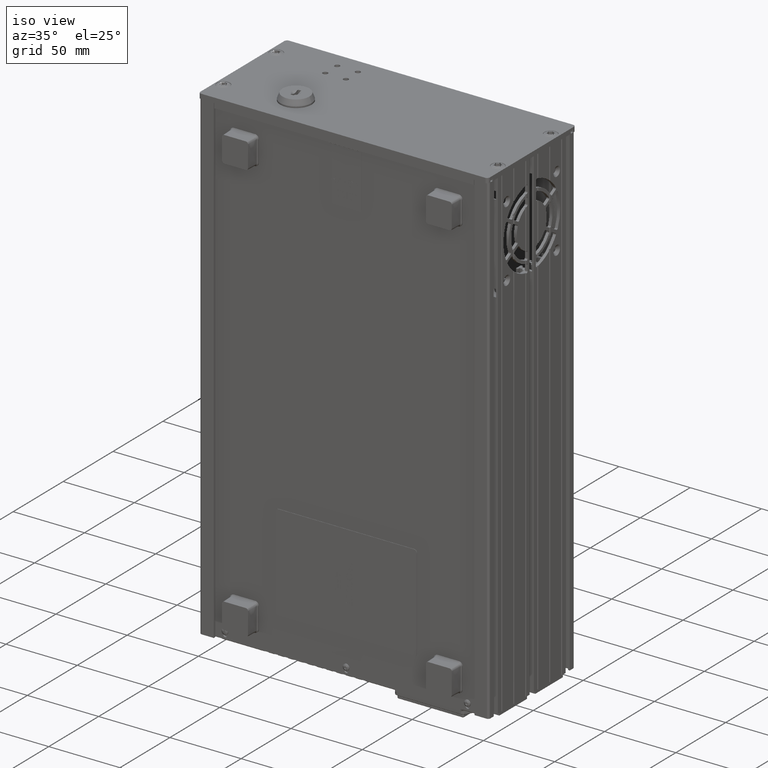
[diagram: clean part render]
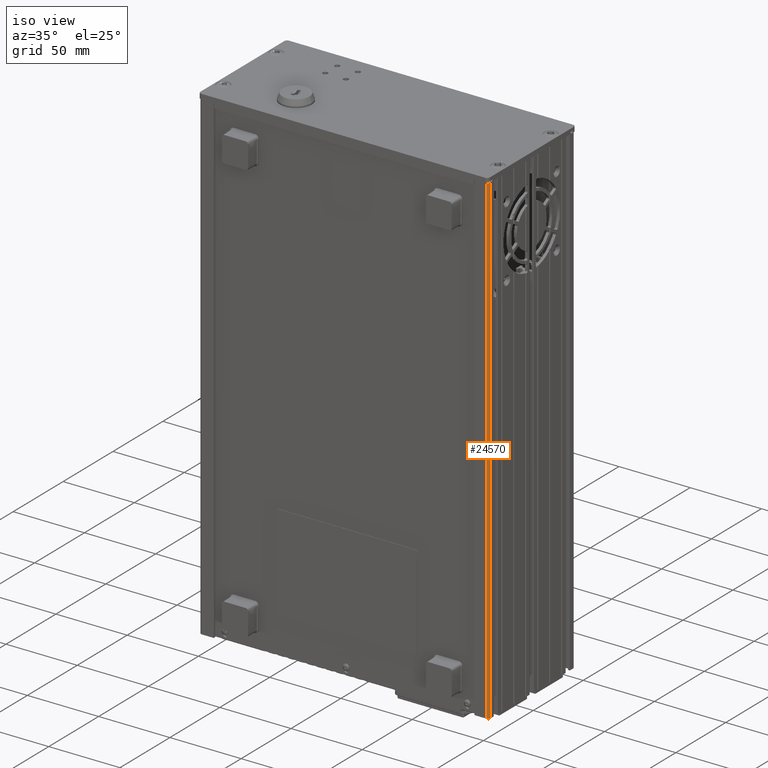
[diagram: same view with one face highlighted and labeled with its STEP entity id]
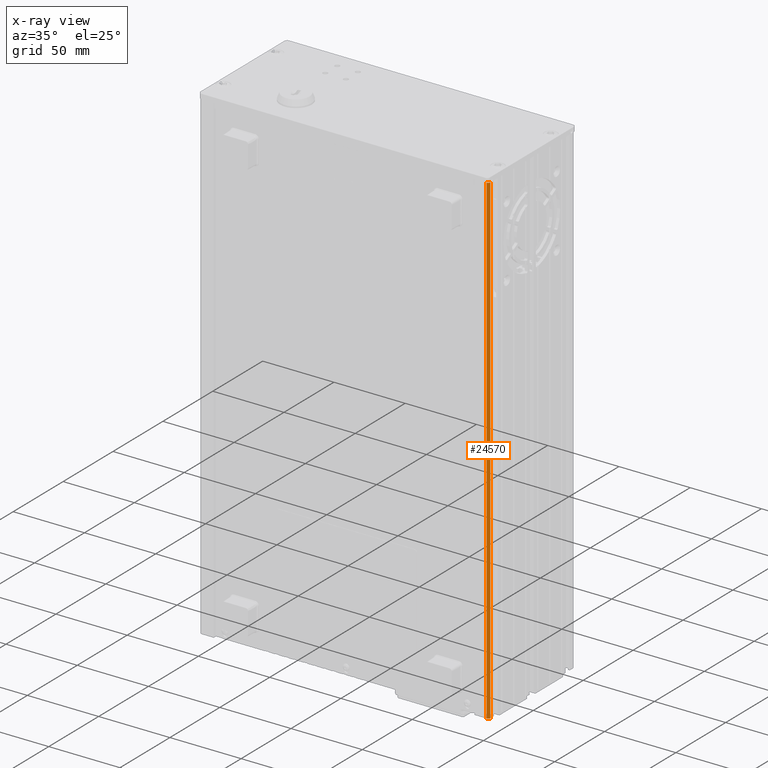
[diagram: x-ray of the same camera — body ghosted, the highlighted face saturated]
A machine part, iso view. The second image highlights one B-rep face of the part: STEP entity #24570.
The next image is the same camera in x-ray: the body ghosted, the highlighted face saturated — about 0% of this face is hidden behind the body in this view.
In plain terms, the highlighted cylindrical surface (edge-blend (fillet) strip) has radius 1.5 mm, axis along (0, 0, 1).
Its self-contained STEP definition (entity closure, byte-faithful):
#913 = CARTESIAN_POINT ( 'NONE',  ( 201.5999999999999900, 0.9700000000000125200, 0.0000000000000000000 ) ) ;
#3701 = DIRECTION ( 'NONE',  ( 0.0000000000000000000, 0.0000000000000000000, 1.000000000000000000 ) ) ;
#6447 = CIRCLE ( 'NONE', #68532, 1.500000000000001300 ) ;
#10416 = FACE_OUTER_BOUND ( 'NONE', #113733, .T. ) ;
#10702 = DIRECTION ( 'NONE',  ( 0.0000000000000000000, 0.0000000000000000000, 1.000000000000000000 ) ) ;
#14494 = CARTESIAN_POINT ( 'NONE',  ( 201.6000000000000200, 2.470000000000014000, -340.0000000000000000 ) ) ;
#15639 = EDGE_CURVE ( 'NONE', #69400, #39932, #6447, .T. ) ;
#18285 = ORIENTED_EDGE ( 'NONE', *, *, #34871, .F. ) ;
#19861 = CYLINDRICAL_SURFACE ( 'NONE', #81518, 1.500000000000001300 ) ;
#20884 = CARTESIAN_POINT ( 'NONE',  ( 203.1000000000000200, 2.470000000000020600, -340.0000000000000000 ) ) ;
#21846 = DIRECTION ( 'NONE',  ( -1.000000000000000000, 0.0000000000000000000, 0.0000000000000000000 ) ) ;
#22071 = VERTEX_POINT ( 'NONE', #27251 ) ;
#22286 = CARTESIAN_POINT ( 'NONE',  ( 201.6000000000000200, 2.470000000000014000, -340.0000000000000000 ) ) ;
#24570 = ADVANCED_FACE ( 'NONE', ( #10416 ), #19861, .T. ) ;
#27251 = CARTESIAN_POINT ( 'NONE',  ( 203.1000000000000200, 2.470000000000020600, 0.0000000000000000000 ) ) ;
#34871 = EDGE_CURVE ( 'NONE', #36313, #22071, #100438, .T. ) ;
#34965 = DIRECTION ( 'NONE',  ( 1.000000000000000000, 0.0000000000000000000, 0.0000000000000000000 ) ) ;
#36313 = VERTEX_POINT ( 'NONE', #913 ) ;
#39699 = CARTESIAN_POINT ( 'NONE',  ( 201.5999999999999900, 0.9700000000000125200, -340.0000000000000000 ) ) ;
#39932 = VERTEX_POINT ( 'NONE', #82758 ) ;
#42677 = EDGE_CURVE ( 'NONE', #69400, #36313, #104256, .T. ) ;
#44884 = ORIENTED_EDGE ( 'NONE', *, *, #15639, .T. ) ;
#50498 = AXIS2_PLACEMENT_3D ( 'NONE', #80855, #10702, #112922 ) ;
#50523 = ORIENTED_EDGE ( 'NONE', *, *, #42677, .F. ) ;
#68532 = AXIS2_PLACEMENT_3D ( 'NONE', #14494, #104715, #34965 ) ;
#69400 = VERTEX_POINT ( 'NONE', #39699 ) ;
#80855 = CARTESIAN_POINT ( 'NONE',  ( 201.6000000000000200, 2.470000000000014000, 0.0000000000000000000 ) ) ;
#81518 = AXIS2_PLACEMENT_3D ( 'NONE', #22286, #115316, #21846 ) ;
#82758 = CARTESIAN_POINT ( 'NONE',  ( 203.1000000000000200, 2.470000000000020600, -340.0000000000000000 ) ) ;
#83595 = VECTOR ( 'NONE', #114796, 1000.000000000000000 ) ;
#85064 = VECTOR ( 'NONE', #3701, 1000.000000000000000 ) ;
#87830 = ORIENTED_EDGE ( 'NONE', *, *, #130202, .T. ) ;
#91631 = LINE ( 'NONE', #20884, #83595 ) ;
#100438 = CIRCLE ( 'NONE', #50498, 1.500000000000001300 ) ;
#101997 = CARTESIAN_POINT ( 'NONE',  ( 201.5999999999999900, 0.9700000000000125200, -340.0000000000000000 ) ) ;
#104256 = LINE ( 'NONE', #101997, #85064 ) ;
#104715 = DIRECTION ( 'NONE',  ( 0.0000000000000000000, 0.0000000000000000000, 1.000000000000000000 ) ) ;
#112922 = DIRECTION ( 'NONE',  ( 1.000000000000000000, 0.0000000000000000000, 0.0000000000000000000 ) ) ;
#113733 = EDGE_LOOP ( 'NONE', ( #18285, #50523, #44884, #87830 ) ) ;
#114796 = DIRECTION ( 'NONE',  ( 0.0000000000000000000, 0.0000000000000000000, 1.000000000000000000 ) ) ;
#115316 = DIRECTION ( 'NONE',  ( 0.0000000000000000000, 0.0000000000000000000, 1.000000000000000000 ) ) ;
#130202 = EDGE_CURVE ( 'NONE', #39932, #22071, #91631, .T. ) ;